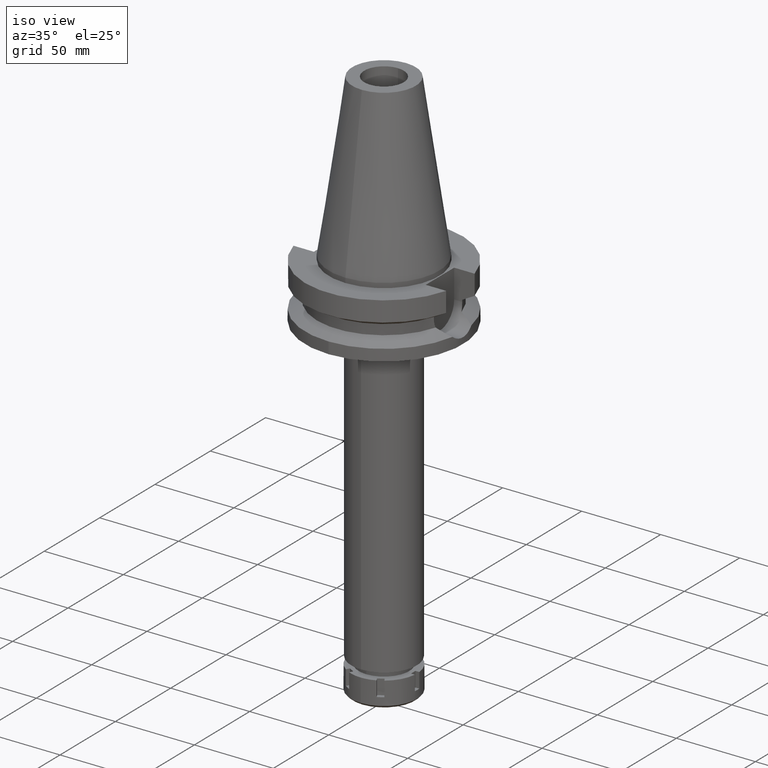
[diagram: clean part render]
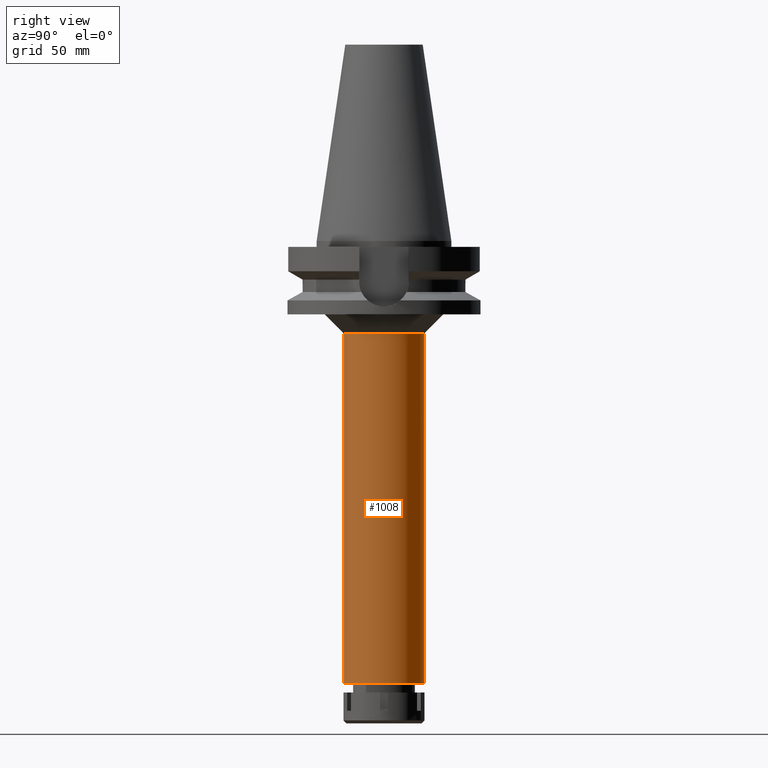
[diagram: tour spotlight — one face highlighted and labeled with its STEP entity id]
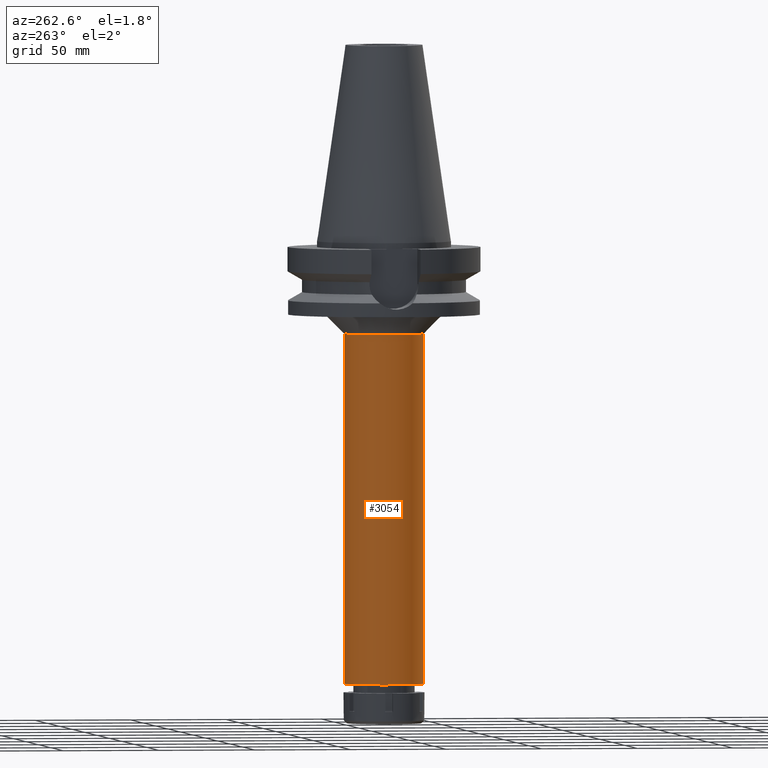
[diagram: tour spotlight — one face highlighted and labeled with its STEP entity id]
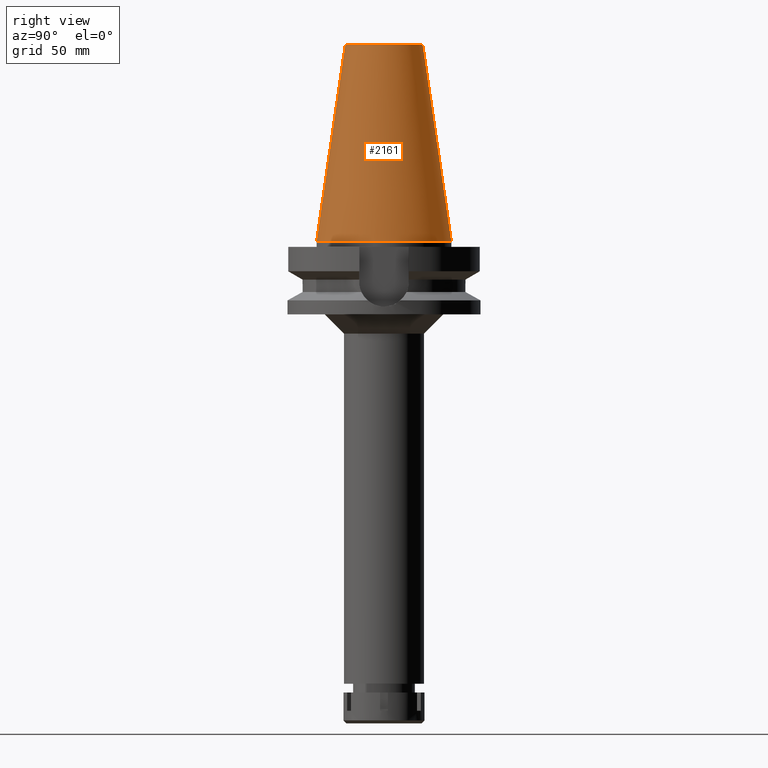
[diagram: tour spotlight — one face highlighted and labeled with its STEP entity id]
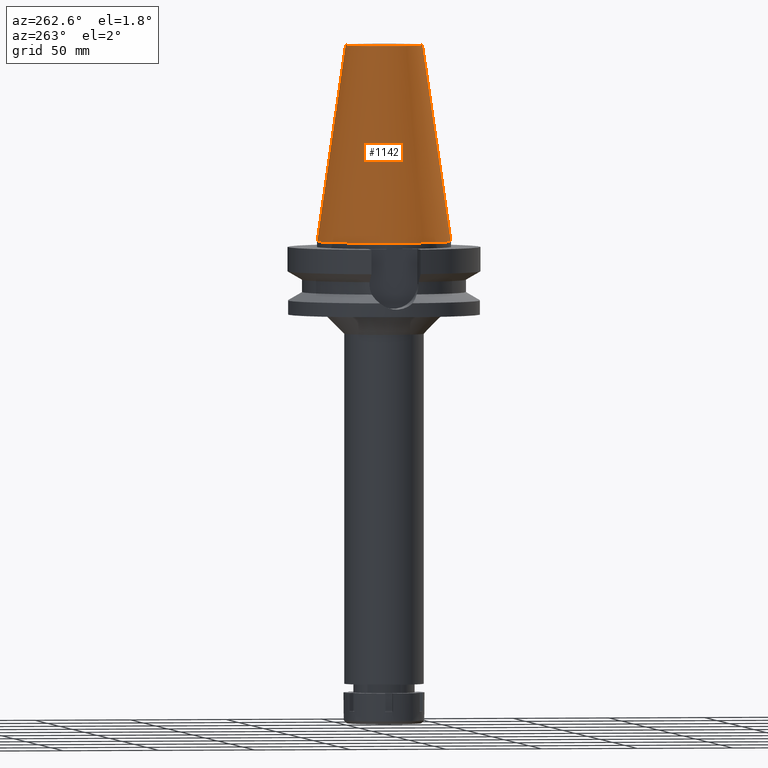
[diagram: tour spotlight — one face highlighted and labeled with its STEP entity id]
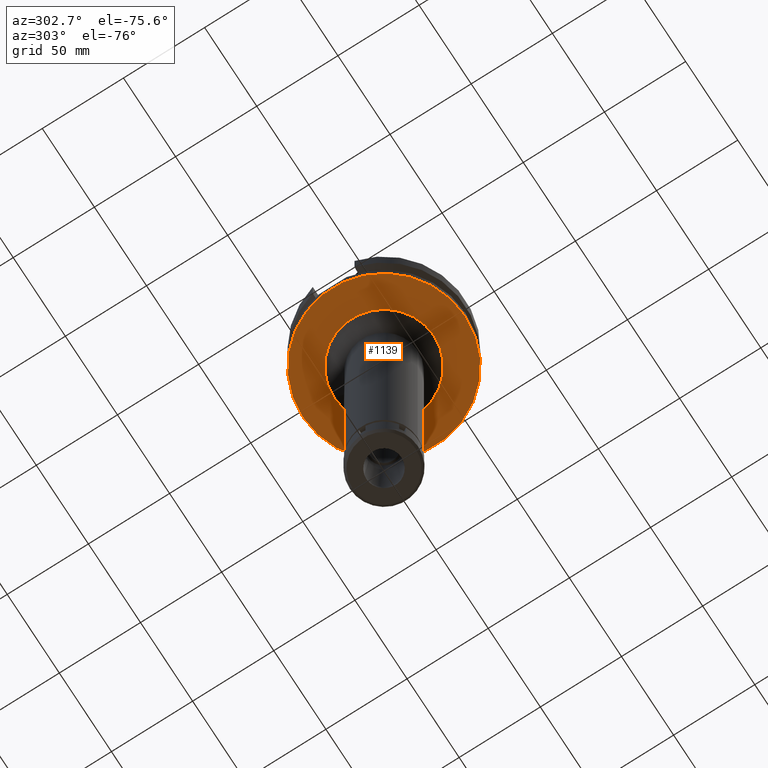
[diagram: tour spotlight — one face highlighted and labeled with its STEP entity id]
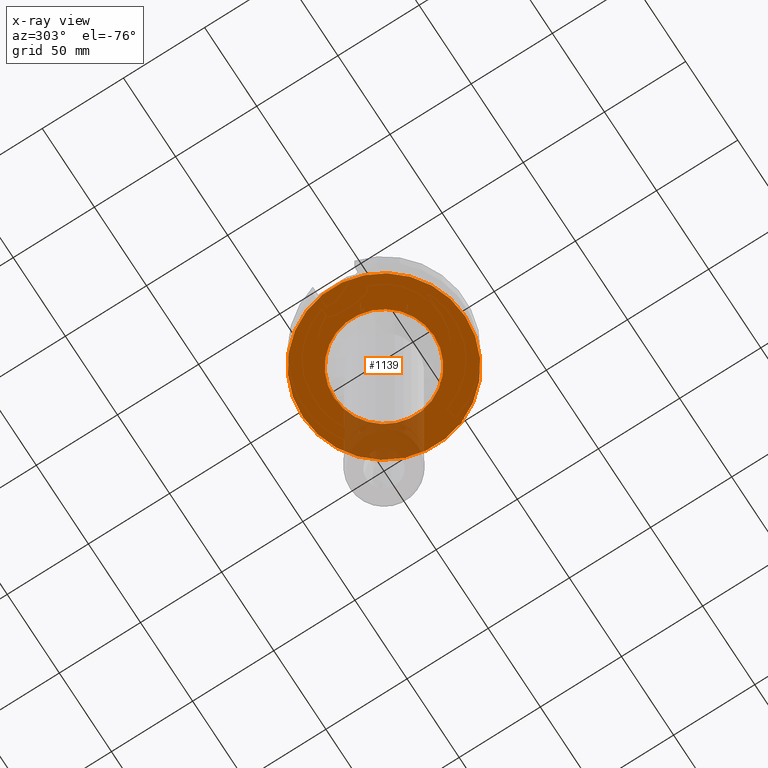
[diagram: x-ray of the same camera — body ghosted, this tour face saturated]
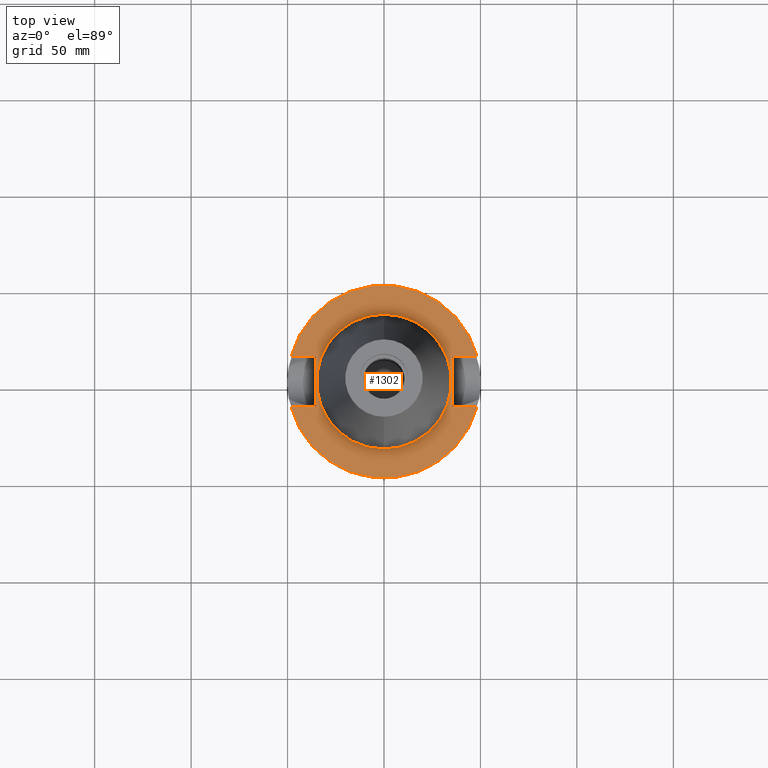
[diagram: tour spotlight — one face highlighted and labeled with its STEP entity id]
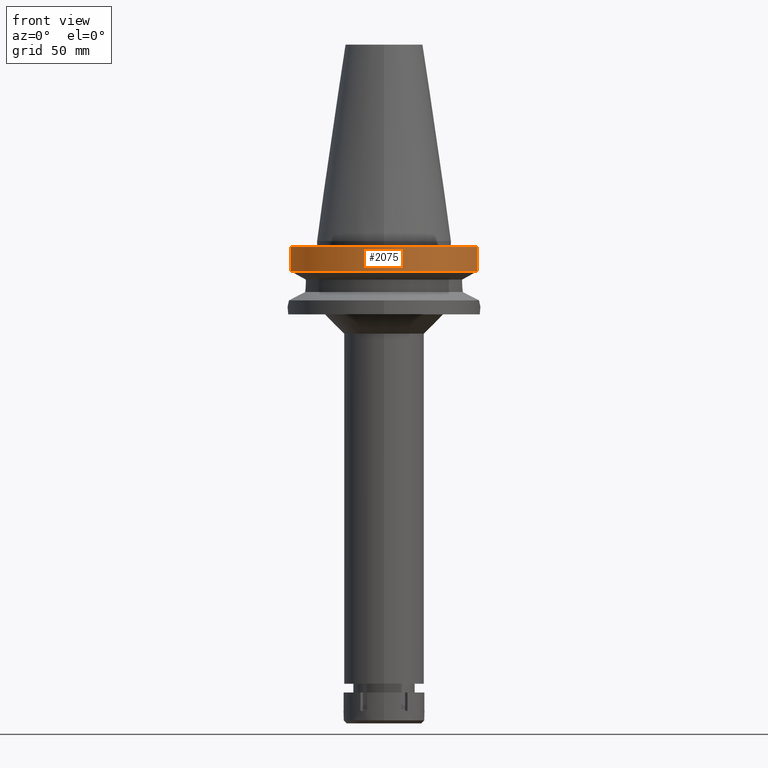
[diagram: tour spotlight — one face highlighted and labeled with its STEP entity id]
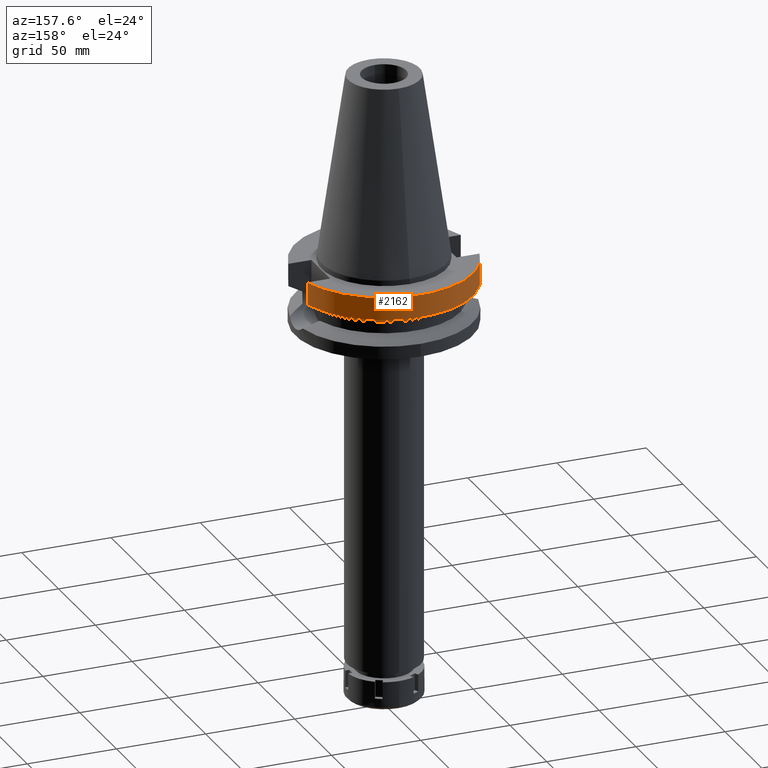
[diagram: tour spotlight — one face highlighted and labeled with its STEP entity id]
A machine part: a face-by-face anatomy tour. The part has 89 B-rep faces; the first image is the clean iso view, then the 8 largest visible faces are spotlighted one at a time (largest first), each with its STEP entity span.

Face 1 — right view, entity #1008. In plain terms, the highlighted cylindrical surface (partial cylindrical patch) has radius 20.75 mm, axis along (0, 0, -1).
Definition (entity closure, byte-faithful):
#76 = CARTESIAN_POINT ( 'NONE',  ( 0.0000000000000000000, 2.681854025452999794E-14, 118.9899999999999949 ) ) ;
#260 = VERTEX_POINT ( 'NONE', #1710 ) ;
#268 = EDGE_CURVE ( 'NONE', #260, #523, #3407, .T. ) ;
#341 = AXIS2_PLACEMENT_3D ( 'NONE', #2353, #685, #3458 ) ;
#523 = VERTEX_POINT ( 'NONE', #3390 ) ;
#626 = CARTESIAN_POINT ( 'NONE',  ( 0.0000000000000000000, 20.75000000000000000, -48.00000000000000000 ) ) ;
#685 = DIRECTION ( 'NONE',  ( 0.0000000000000000000, 0.0000000000000000000, -1.000000000000000000 ) ) ;
#687 = CIRCLE ( 'NONE', #341, 20.75000000000000000 ) ;
#735 = CARTESIAN_POINT ( 'NONE',  ( 0.0000000000000000000, 20.75000000000000000, -48.00000000000000000 ) ) ;
#936 = DIRECTION ( 'NONE',  ( 0.0000000000000000000, -1.000000000000000000, 0.0000000000000000000 ) ) ;
#1008 = ADVANCED_FACE ( 'NONE', ( #2555 ), #1459, .T. ) ;
#1252 = VERTEX_POINT ( 'NONE', #735 ) ;
#1273 = ORIENTED_EDGE ( 'NONE', *, *, #3543, .T. ) ;
#1414 = ORIENTED_EDGE ( 'NONE', *, *, #268, .T. ) ;
#1459 = CYLINDRICAL_SURFACE ( 'NONE', #1950, 20.75000000000000000 ) ;
#1483 = ORIENTED_EDGE ( 'NONE', *, *, #3055, .F. ) ;
#1491 = LINE ( 'NONE', #2117, #2679 ) ;
#1519 = VECTOR ( 'NONE', #2551, 1000.000000000000000 ) ;
#1624 = AXIS2_PLACEMENT_3D ( 'NONE', #1722, #2780, #936 ) ;
#1710 = CARTESIAN_POINT ( 'NONE',  ( 0.0000000000000000000, -20.75000000000000000, -229.5000000000000000 ) ) ;
#1722 = CARTESIAN_POINT ( 'NONE',  ( 0.0000000000000000000, 2.681854025452999794E-14, -229.5000000000000000 ) ) ;
#1745 = LINE ( 'NONE', #626, #1519 ) ;
#1844 = DIRECTION ( 'NONE',  ( 0.0000000000000000000, 0.0000000000000000000, -1.000000000000000000 ) ) ;
#1950 = AXIS2_PLACEMENT_3D ( 'NONE', #76, #2876, #3146 ) ;
#2117 = CARTESIAN_POINT ( 'NONE',  ( 0.0000000000000000000, -20.75000000000000000, -48.00000000000000000 ) ) ;
#2353 = CARTESIAN_POINT ( 'NONE',  ( 0.0000000000000000000, 0.0000000000000000000, -48.00000000000000000 ) ) ;
#2422 = EDGE_CURVE ( 'NONE', #1252, #3325, #687, .T. ) ;
#2551 = DIRECTION ( 'NONE',  ( 0.0000000000000000000, 0.0000000000000000000, -1.000000000000000000 ) ) ;
#2555 = FACE_OUTER_BOUND ( 'NONE', #2710, .T. ) ;
#2679 = VECTOR ( 'NONE', #1844, 1000.000000000000000 ) ;
#2710 = EDGE_LOOP ( 'NONE', ( #3492, #1273, #1414, #1483 ) ) ;
#2780 = DIRECTION ( 'NONE',  ( 0.0000000000000000000, 0.0000000000000000000, 1.000000000000000000 ) ) ;
#2876 = DIRECTION ( 'NONE',  ( 0.0000000000000000000, 0.0000000000000000000, -1.000000000000000000 ) ) ;
#3055 = EDGE_CURVE ( 'NONE', #1252, #523, #1745, .T. ) ;
#3146 = DIRECTION ( 'NONE',  ( 0.0000000000000000000, -1.000000000000000000, 0.0000000000000000000 ) ) ;
#3325 = VERTEX_POINT ( 'NONE', #3557 ) ;
#3390 = CARTESIAN_POINT ( 'NONE',  ( 0.0000000000000000000, 20.75000000000000000, -229.5000000000000000 ) ) ;
#3407 = CIRCLE ( 'NONE', #1624, 20.75000000000000000 ) ;
#3458 = DIRECTION ( 'NONE',  ( 0.0000000000000000000, 1.000000000000000000, 0.0000000000000000000 ) ) ;
#3492 = ORIENTED_EDGE ( 'NONE', *, *, #2422, .T. ) ;
#3543 = EDGE_CURVE ( 'NONE', #3325, #260, #1491, .T. ) ;
#3557 = CARTESIAN_POINT ( 'NONE',  ( 0.0000000000000000000, -20.75000000000000000, -48.00000000000000000 ) ) ;

Face 2 — auxiliary view, entity #3054. In plain terms, the highlighted cylindrical surface (partial cylindrical patch) has radius 20.75 mm, axis along (0, 0, -1).
Definition (entity closure, byte-faithful):
#176 = EDGE_LOOP ( 'NONE', ( #228, #887, #2506, #3128 ) ) ;
#228 = ORIENTED_EDGE ( 'NONE', *, *, #389, .T. ) ;
#260 = VERTEX_POINT ( 'NONE', #1710 ) ;
#389 = EDGE_CURVE ( 'NONE', #523, #260, #1100, .T. ) ;
#490 = DIRECTION ( 'NONE',  ( 0.0000000000000000000, -1.000000000000000000, 0.0000000000000000000 ) ) ;
#523 = VERTEX_POINT ( 'NONE', #3390 ) ;
#607 = DIRECTION ( 'NONE',  ( 0.0000000000000000000, -1.000000000000000000, 0.0000000000000000000 ) ) ;
#626 = CARTESIAN_POINT ( 'NONE',  ( 0.0000000000000000000, 20.75000000000000000, -48.00000000000000000 ) ) ;
#735 = CARTESIAN_POINT ( 'NONE',  ( 0.0000000000000000000, 20.75000000000000000, -48.00000000000000000 ) ) ;
#753 = CARTESIAN_POINT ( 'NONE',  ( 0.0000000000000000000, 0.0000000000000000000, -48.00000000000000000 ) ) ;
#887 = ORIENTED_EDGE ( 'NONE', *, *, #3543, .F. ) ;
#1100 = CIRCLE ( 'NONE', #1221, 20.75000000000000000 ) ;
#1221 = AXIS2_PLACEMENT_3D ( 'NONE', #2066, #3159, #2891 ) ;
#1252 = VERTEX_POINT ( 'NONE', #735 ) ;
#1344 = DIRECTION ( 'NONE',  ( 0.0000000000000000000, 0.0000000000000000000, -1.000000000000000000 ) ) ;
#1491 = LINE ( 'NONE', #2117, #2679 ) ;
#1519 = VECTOR ( 'NONE', #2551, 1000.000000000000000 ) ;
#1710 = CARTESIAN_POINT ( 'NONE',  ( 0.0000000000000000000, -20.75000000000000000, -229.5000000000000000 ) ) ;
#1726 = CARTESIAN_POINT ( 'NONE',  ( 0.0000000000000000000, 2.681854025452999794E-14, 118.9899999999999949 ) ) ;
#1745 = LINE ( 'NONE', #626, #1519 ) ;
#1844 = DIRECTION ( 'NONE',  ( 0.0000000000000000000, 0.0000000000000000000, -1.000000000000000000 ) ) ;
#2066 = CARTESIAN_POINT ( 'NONE',  ( 0.0000000000000000000, 2.681854025452999794E-14, -229.5000000000000000 ) ) ;
#2117 = CARTESIAN_POINT ( 'NONE',  ( 0.0000000000000000000, -20.75000000000000000, -48.00000000000000000 ) ) ;
#2152 = AXIS2_PLACEMENT_3D ( 'NONE', #1726, #2819, #607 ) ;
#2316 = CYLINDRICAL_SURFACE ( 'NONE', #2152, 20.75000000000000000 ) ;
#2482 = CIRCLE ( 'NONE', #2719, 20.75000000000000000 ) ;
#2506 = ORIENTED_EDGE ( 'NONE', *, *, #2691, .T. ) ;
#2551 = DIRECTION ( 'NONE',  ( 0.0000000000000000000, 0.0000000000000000000, -1.000000000000000000 ) ) ;
#2623 = FACE_OUTER_BOUND ( 'NONE', #176, .T. ) ;
#2679 = VECTOR ( 'NONE', #1844, 1000.000000000000000 ) ;
#2691 = EDGE_CURVE ( 'NONE', #3325, #1252, #2482, .T. ) ;
#2719 = AXIS2_PLACEMENT_3D ( 'NONE', #753, #1344, #490 ) ;
#2819 = DIRECTION ( 'NONE',  ( 0.0000000000000000000, 0.0000000000000000000, -1.000000000000000000 ) ) ;
#2891 = DIRECTION ( 'NONE',  ( 0.0000000000000000000, 1.000000000000000000, 0.0000000000000000000 ) ) ;
#3054 = ADVANCED_FACE ( 'NONE', ( #2623 ), #2316, .T. ) ;
#3055 = EDGE_CURVE ( 'NONE', #1252, #523, #1745, .T. ) ;
#3128 = ORIENTED_EDGE ( 'NONE', *, *, #3055, .T. ) ;
#3159 = DIRECTION ( 'NONE',  ( 0.0000000000000000000, 0.0000000000000000000, 1.000000000000000000 ) ) ;
#3325 = VERTEX_POINT ( 'NONE', #3557 ) ;
#3390 = CARTESIAN_POINT ( 'NONE',  ( 0.0000000000000000000, 20.75000000000000000, -229.5000000000000000 ) ) ;
#3543 = EDGE_CURVE ( 'NONE', #3325, #260, #1491, .T. ) ;
#3557 = CARTESIAN_POINT ( 'NONE',  ( 0.0000000000000000000, -20.75000000000000000, -48.00000000000000000 ) ) ;

Face 3 — right view, entity #2161. In plain terms, the highlighted conical surface has half-angle 8.297 deg.
Definition (entity closure, byte-faithful):
#24 = DIRECTION ( 'NONE',  ( 0.0000000000000000000, 1.000000000000000000, 0.0000000000000000000 ) ) ;
#42 = CARTESIAN_POINT ( 'NONE',  ( 0.0000000000000000000, -20.07942971896000017, 101.7999999999999972 ) ) ;
#58 = VERTEX_POINT ( 'NONE', #3335 ) ;
#90 = AXIS2_PLACEMENT_3D ( 'NONE', #1406, #872, #24 ) ;
#376 = CARTESIAN_POINT ( 'NONE',  ( 0.0000000000000000000, 1.847992019912999597E-14, 101.7999999999999972 ) ) ;
#527 = FACE_OUTER_BOUND ( 'NONE', #3572, .T. ) ;
#578 = EDGE_CURVE ( 'NONE', #2630, #597, #1208, .T. ) ;
#597 = VERTEX_POINT ( 'NONE', #2287 ) ;
#744 = ORIENTED_EDGE ( 'NONE', *, *, #578, .F. ) ;
#761 = LINE ( 'NONE', #42, #2644 ) ;
#819 = ORIENTED_EDGE ( 'NONE', *, *, #1782, .F. ) ;
#872 = DIRECTION ( 'NONE',  ( 0.0000000000000000000, 0.0000000000000000000, -1.000000000000000000 ) ) ;
#915 = EDGE_CURVE ( 'NONE', #58, #2194, #761, .T. ) ;
#939 = ORIENTED_EDGE ( 'NONE', *, *, #915, .T. ) ;
#995 = AXIS2_PLACEMENT_3D ( 'NONE', #376, #2926, #2571 ) ;
#1208 = LINE ( 'NONE', #2063, #1261 ) ;
#1261 = VECTOR ( 'NONE', #2883, 1000.000000000000114 ) ;
#1327 = CIRCLE ( 'NONE', #90, 34.92499999999999716 ) ;
#1406 = CARTESIAN_POINT ( 'NONE',  ( 0.0000000000000000000, 1.847992019912999597E-14, 3.979039320256999774E-13 ) ) ;
#1425 = DIRECTION ( 'NONE',  ( 0.0000000000000000000, -0.1443043893538948075, -0.9895333461855641000 ) ) ;
#1782 = EDGE_CURVE ( 'NONE', #597, #2194, #1327, .T. ) ;
#1793 = CONICAL_SURFACE ( 'NONE', #2765, 27.50221485948000222, 0.1448099680379422438 ) ;
#2063 = CARTESIAN_POINT ( 'NONE',  ( 0.0000000000000000000, 20.07942971896000017, 101.7999999999999972 ) ) ;
#2108 = CARTESIAN_POINT ( 'NONE',  ( 0.0000000000000000000, 20.07942971896000017, 101.7999999999999972 ) ) ;
#2111 = DIRECTION ( 'NONE',  ( 0.0000000000000000000, -1.000000000000000000, 0.0000000000000000000 ) ) ;
#2161 = ADVANCED_FACE ( 'NONE', ( #527 ), #1793, .T. ) ;
#2194 = VERTEX_POINT ( 'NONE', #2381 ) ;
#2287 = CARTESIAN_POINT ( 'NONE',  ( 0.0000000000000000000, 34.92499999999999716, 5.400124791776999712E-13 ) ) ;
#2340 = ORIENTED_EDGE ( 'NONE', *, *, #3526, .T. ) ;
#2381 = CARTESIAN_POINT ( 'NONE',  ( 0.0000000000000000000, -34.92499999999999716, 3.979039320256999774E-13 ) ) ;
#2387 = CIRCLE ( 'NONE', #995, 20.07942971896000017 ) ;
#2571 = DIRECTION ( 'NONE',  ( 0.0000000000000000000, 1.000000000000000000, 0.0000000000000000000 ) ) ;
#2630 = VERTEX_POINT ( 'NONE', #2108 ) ;
#2644 = VECTOR ( 'NONE', #1425, 1000.000000000000114 ) ;
#2765 = AXIS2_PLACEMENT_3D ( 'NONE', #3209, #2938, #2111 ) ;
#2883 = DIRECTION ( 'NONE',  ( 0.0000000000000000000, 0.1443043893538948075, -0.9895333461855641000 ) ) ;
#2926 = DIRECTION ( 'NONE',  ( 0.0000000000000000000, 0.0000000000000000000, -1.000000000000000000 ) ) ;
#2938 = DIRECTION ( 'NONE',  ( 0.0000000000000000000, 0.0000000000000000000, -1.000000000000000000 ) ) ;
#3209 = CARTESIAN_POINT ( 'NONE',  ( 0.0000000000000000000, 1.847992019912999597E-14, 50.89999999999999858 ) ) ;
#3335 = CARTESIAN_POINT ( 'NONE',  ( 0.0000000000000000000, -20.07942971896000017, 101.7999999999999972 ) ) ;
#3526 = EDGE_CURVE ( 'NONE', #2630, #58, #2387, .T. ) ;
#3572 = EDGE_LOOP ( 'NONE', ( #2340, #939, #819, #744 ) ) ;

Face 4 — auxiliary view, entity #1142. In plain terms, the highlighted conical surface has half-angle 8.297 deg.
Definition (entity closure, byte-faithful):
#42 = CARTESIAN_POINT ( 'NONE',  ( 0.0000000000000000000, -20.07942971896000017, 101.7999999999999972 ) ) ;
#58 = VERTEX_POINT ( 'NONE', #3335 ) ;
#578 = EDGE_CURVE ( 'NONE', #2630, #597, #1208, .T. ) ;
#597 = VERTEX_POINT ( 'NONE', #2287 ) ;
#654 = EDGE_CURVE ( 'NONE', #2194, #597, #3162, .T. ) ;
#661 = DIRECTION ( 'NONE',  ( 0.0000000000000000000, 0.0000000000000000000, -1.000000000000000000 ) ) ;
#761 = LINE ( 'NONE', #42, #2644 ) ;
#888 = DIRECTION ( 'NONE',  ( 0.0000000000000000000, -1.000000000000000000, 0.0000000000000000000 ) ) ;
#915 = EDGE_CURVE ( 'NONE', #58, #2194, #761, .T. ) ;
#945 = CARTESIAN_POINT ( 'NONE',  ( 0.0000000000000000000, 1.847992019912999597E-14, 50.89999999999999858 ) ) ;
#971 = AXIS2_PLACEMENT_3D ( 'NONE', #945, #1164, #888 ) ;
#985 = CARTESIAN_POINT ( 'NONE',  ( 0.0000000000000000000, 1.847992019912999597E-14, 3.979039320256999774E-13 ) ) ;
#1030 = CONICAL_SURFACE ( 'NONE', #971, 27.50221485948000222, 0.1448099680379422438 ) ;
#1142 = ADVANCED_FACE ( 'NONE', ( #3402 ), #1030, .T. ) ;
#1164 = DIRECTION ( 'NONE',  ( 0.0000000000000000000, 0.0000000000000000000, -1.000000000000000000 ) ) ;
#1208 = LINE ( 'NONE', #2063, #1261 ) ;
#1261 = VECTOR ( 'NONE', #2883, 1000.000000000000114 ) ;
#1264 = CARTESIAN_POINT ( 'NONE',  ( 0.0000000000000000000, 1.847992019912999597E-14, 101.7999999999999972 ) ) ;
#1417 = EDGE_CURVE ( 'NONE', #58, #2630, #1733, .T. ) ;
#1425 = DIRECTION ( 'NONE',  ( 0.0000000000000000000, -0.1443043893538948075, -0.9895333461855641000 ) ) ;
#1437 = AXIS2_PLACEMENT_3D ( 'NONE', #985, #2096, #3191 ) ;
#1605 = ORIENTED_EDGE ( 'NONE', *, *, #654, .F. ) ;
#1733 = CIRCLE ( 'NONE', #1901, 20.07942971896000017 ) ;
#1901 = AXIS2_PLACEMENT_3D ( 'NONE', #1264, #661, #2046 ) ;
#1970 = ORIENTED_EDGE ( 'NONE', *, *, #578, .T. ) ;
#2046 = DIRECTION ( 'NONE',  ( 0.0000000000000000000, -1.000000000000000000, 0.0000000000000000000 ) ) ;
#2063 = CARTESIAN_POINT ( 'NONE',  ( 0.0000000000000000000, 20.07942971896000017, 101.7999999999999972 ) ) ;
#2096 = DIRECTION ( 'NONE',  ( 0.0000000000000000000, 0.0000000000000000000, -1.000000000000000000 ) ) ;
#2108 = CARTESIAN_POINT ( 'NONE',  ( 0.0000000000000000000, 20.07942971896000017, 101.7999999999999972 ) ) ;
#2194 = VERTEX_POINT ( 'NONE', #2381 ) ;
#2287 = CARTESIAN_POINT ( 'NONE',  ( 0.0000000000000000000, 34.92499999999999716, 5.400124791776999712E-13 ) ) ;
#2381 = CARTESIAN_POINT ( 'NONE',  ( 0.0000000000000000000, -34.92499999999999716, 3.979039320256999774E-13 ) ) ;
#2630 = VERTEX_POINT ( 'NONE', #2108 ) ;
#2644 = VECTOR ( 'NONE', #1425, 1000.000000000000114 ) ;
#2883 = DIRECTION ( 'NONE',  ( 0.0000000000000000000, 0.1443043893538948075, -0.9895333461855641000 ) ) ;
#3027 = ORIENTED_EDGE ( 'NONE', *, *, #915, .F. ) ;
#3162 = CIRCLE ( 'NONE', #1437, 34.92499999999999716 ) ;
#3191 = DIRECTION ( 'NONE',  ( 0.0000000000000000000, -1.000000000000000000, 0.0000000000000000000 ) ) ;
#3288 = EDGE_LOOP ( 'NONE', ( #1605, #3027, #3386, #1970 ) ) ;
#3335 = CARTESIAN_POINT ( 'NONE',  ( 0.0000000000000000000, -20.07942971896000017, 101.7999999999999972 ) ) ;
#3386 = ORIENTED_EDGE ( 'NONE', *, *, #1417, .T. ) ;
#3402 = FACE_OUTER_BOUND ( 'NONE', #3288, .T. ) ;

Face 5 — auxiliary view, entity #1139. An x-ray twin of the same camera follows (body ghosted, this face saturated) — the face is partly hidden behind the body. In plain terms, the highlighted planar face has unit normal (0, 0, -1).
Definition (entity closure, byte-faithful):
#91 = DIRECTION ( 'NONE',  ( 0.0000000000000000000, 0.0000000000000000000, 1.000000000000000000 ) ) ;
#95 = FACE_BOUND ( 'NONE', #2972, .T. ) ;
#224 = ORIENTED_EDGE ( 'NONE', *, *, #2930, .F. ) ;
#343 = VERTEX_POINT ( 'NONE', #2332 ) ;
#365 = EDGE_CURVE ( 'NONE', #1680, #2084, #741, .T. ) ;
#390 = CIRCLE ( 'NONE', #2813, 30.75000000000000000 ) ;
#589 = CARTESIAN_POINT ( 'NONE',  ( 0.0000000000000000000, 2.681854025452999794E-14, -38.00000000000000000 ) ) ;
#741 = CIRCLE ( 'NONE', #2830, 30.75000000000000000 ) ;
#743 = CARTESIAN_POINT ( 'NONE',  ( 0.0000000000000000000, 30.75000000000000000, -38.00000000000000000 ) ) ;
#809 = AXIS2_PLACEMENT_3D ( 'NONE', #589, #861, #837 ) ;
#837 = DIRECTION ( 'NONE',  ( 0.0000000000000000000, 1.000000000000000000, 0.0000000000000000000 ) ) ;
#858 = ORIENTED_EDGE ( 'NONE', *, *, #365, .F. ) ;
#861 = DIRECTION ( 'NONE',  ( 0.0000000000000000000, 0.0000000000000000000, 1.000000000000000000 ) ) ;
#904 = EDGE_LOOP ( 'NONE', ( #1664, #224 ) ) ;
#929 = CARTESIAN_POINT ( 'NONE',  ( 0.0000000000000000000, -30.75000000000000000, -38.00000000000000000 ) ) ;
#941 = CARTESIAN_POINT ( 'NONE',  ( 0.0000000000000000000, 2.681854025452999794E-14, -38.00000000000000000 ) ) ;
#962 = EDGE_CURVE ( 'NONE', #2084, #1680, #390, .T. ) ;
#976 = CARTESIAN_POINT ( 'NONE',  ( 0.0000000000000000000, 0.0000000000000000000, -38.00000000000000000 ) ) ;
#1139 = ADVANCED_FACE ( 'NONE', ( #1532, #95 ), #2318, .T. ) ;
#1300 = DIRECTION ( 'NONE',  ( 0.0000000000000000000, 0.0000000000000000000, -1.000000000000000000 ) ) ;
#1509 = DIRECTION ( 'NONE',  ( 0.0000000000000000000, 0.0000000000000000000, -1.000000000000000000 ) ) ;
#1532 = FACE_OUTER_BOUND ( 'NONE', #904, .T. ) ;
#1542 = DIRECTION ( 'NONE',  ( 0.0000000000000000000, 1.000000000000000000, 0.0000000000000000000 ) ) ;
#1664 = ORIENTED_EDGE ( 'NONE', *, *, #2996, .F. ) ;
#1680 = VERTEX_POINT ( 'NONE', #743 ) ;
#1775 = DIRECTION ( 'NONE',  ( 0.0000000000000000000, -1.000000000000000000, 0.0000000000000000000 ) ) ;
#1973 = CIRCLE ( 'NONE', #809, 50.00000000000000000 ) ;
#2084 = VERTEX_POINT ( 'NONE', #929 ) ;
#2264 = DIRECTION ( 'NONE',  ( 0.0000000000000000000, -1.000000000000000000, 0.0000000000000000000 ) ) ;
#2297 = CARTESIAN_POINT ( 'NONE',  ( 0.0000000000000000000, 0.0000000000000000000, -38.00000000000000000 ) ) ;
#2318 = PLANE ( 'NONE',  #2533 ) ;
#2332 = CARTESIAN_POINT ( 'NONE',  ( 0.0000000000000000000, -50.00000000000000000, -38.00000000000000000 ) ) ;
#2373 = DIRECTION ( 'NONE',  ( 0.0000000000000000000, -1.000000000000000000, 0.0000000000000000000 ) ) ;
#2447 = CARTESIAN_POINT ( 'NONE',  ( 0.0000000000000000000, 50.00000000000000000, -38.00000000000000000 ) ) ;
#2533 = AXIS2_PLACEMENT_3D ( 'NONE', #2297, #1509, #2264 ) ;
#2605 = ORIENTED_EDGE ( 'NONE', *, *, #962, .F. ) ;
#2628 = VERTEX_POINT ( 'NONE', #2447 ) ;
#2813 = AXIS2_PLACEMENT_3D ( 'NONE', #976, #3493, #2373 ) ;
#2830 = AXIS2_PLACEMENT_3D ( 'NONE', #3213, #1300, #1542 ) ;
#2930 = EDGE_CURVE ( 'NONE', #2628, #343, #1973, .T. ) ;
#2972 = EDGE_LOOP ( 'NONE', ( #2605, #858 ) ) ;
#2996 = EDGE_CURVE ( 'NONE', #343, #2628, #3250, .T. ) ;
#3213 = CARTESIAN_POINT ( 'NONE',  ( 0.0000000000000000000, 0.0000000000000000000, -38.00000000000000000 ) ) ;
#3250 = CIRCLE ( 'NONE', #3533, 50.00000000000000000 ) ;
#3493 = DIRECTION ( 'NONE',  ( 0.0000000000000000000, 0.0000000000000000000, -1.000000000000000000 ) ) ;
#3533 = AXIS2_PLACEMENT_3D ( 'NONE', #941, #91, #1775 ) ;

Face 6 — top view, entity #1302. In plain terms, the highlighted planar face has unit normal (0, 0, -1).
Definition (entity closure, byte-faithful):
#29 = DIRECTION ( 'NONE',  ( 0.0000000000000000000, -1.000000000000000000, 0.0000000000000000000 ) ) ;
#80 = DIRECTION ( 'NONE',  ( 0.0000000000000000000, -1.000000000000000000, 0.0000000000000000000 ) ) ;
#83 = CARTESIAN_POINT ( 'NONE',  ( 0.0000000000000000000, 2.681854025452999794E-14, -3.000000000000000000 ) ) ;
#86 = CIRCLE ( 'NONE', #1893, 50.00000000000000000 ) ;
#107 = CARTESIAN_POINT ( 'NONE',  ( 35.39999999999999858, 12.84999999999999964, -3.000000000000000000 ) ) ;
#119 = EDGE_LOOP ( 'NONE', ( #159, #1424 ) ) ;
#123 = DIRECTION ( 'NONE',  ( 0.0000000000000000000, -1.000000000000000000, 0.0000000000000000000 ) ) ;
#159 = ORIENTED_EDGE ( 'NONE', *, *, #2007, .F. ) ;
#216 = ORIENTED_EDGE ( 'NONE', *, *, #1983, .F. ) ;
#221 = ORIENTED_EDGE ( 'NONE', *, *, #2315, .T. ) ;
#222 = VECTOR ( 'NONE', #2787, 1000.000000000000000 ) ;
#246 = ORIENTED_EDGE ( 'NONE', *, *, #2514, .F. ) ;
#269 = LINE ( 'NONE', #1107, #222 ) ;
#318 = ORIENTED_EDGE ( 'NONE', *, *, #538, .F. ) ;
#368 = DIRECTION ( 'NONE',  ( 0.0000000000000000000, 0.0000000000000000000, 1.000000000000000000 ) ) ;
#373 = CARTESIAN_POINT ( 'NONE',  ( 0.0000000000000000000, -34.92499999999999716, -3.000000000000000000 ) ) ;
#387 = CARTESIAN_POINT ( 'NONE',  ( 35.39999999999999858, -12.84999999999999964, -3.000000000000000000 ) ) ;
#538 = EDGE_CURVE ( 'NONE', #1315, #768, #86, .T. ) ;
#570 = ORIENTED_EDGE ( 'NONE', *, *, #983, .F. ) ;
#577 = EDGE_CURVE ( 'NONE', #1715, #1315, #1229, .T. ) ;
#604 = DIRECTION ( 'NONE',  ( 1.000000000000000000, 0.0000000000000000000, 0.0000000000000000000 ) ) ;
#622 = AXIS2_PLACEMENT_3D ( 'NONE', #2285, #368, #80 ) ;
#633 = DIRECTION ( 'NONE',  ( 0.0000000000000000000, 1.000000000000000000, 0.0000000000000000000 ) ) ;
#660 = EDGE_CURVE ( 'NONE', #1442, #1715, #2363, .T. ) ;
#768 = VERTEX_POINT ( 'NONE', #2994 ) ;
#869 = DIRECTION ( 'NONE',  ( 0.0000000000000000000, -1.000000000000000000, 0.0000000000000000000 ) ) ;
#950 = DIRECTION ( 'NONE',  ( 0.0000000000000000000, 0.0000000000000000000, 1.000000000000000000 ) ) ;
#983 = EDGE_CURVE ( 'NONE', #3555, #2299, #1200, .T. ) ;
#991 = VERTEX_POINT ( 'NONE', #3165 ) ;
#1107 = CARTESIAN_POINT ( 'NONE',  ( -35.39999999999999858, -12.84999999999999964, -3.000000000000000000 ) ) ;
#1119 = CARTESIAN_POINT ( 'NONE',  ( 0.0000000000000000000, 1.187907395172999884E-14, -3.000000000000000000 ) ) ;
#1200 = LINE ( 'NONE', #1720, #2013 ) ;
#1229 = LINE ( 'NONE', #387, #1837 ) ;
#1302 = ADVANCED_FACE ( 'NONE', ( #2276, #3587 ), #1450, .F. ) ;
#1311 = EDGE_CURVE ( 'NONE', #1442, #991, #3379, .T. ) ;
#1315 = VERTEX_POINT ( 'NONE', #3320 ) ;
#1416 = VERTEX_POINT ( 'NONE', #373 ) ;
#1424 = ORIENTED_EDGE ( 'NONE', *, *, #2031, .F. ) ;
#1442 = VERTEX_POINT ( 'NONE', #107 ) ;
#1450 = PLANE ( 'NONE',  #2187 ) ;
#1500 = DIRECTION ( 'NONE',  ( 1.000000000000000000, 0.0000000000000000000, 0.0000000000000000000 ) ) ;
#1536 = CARTESIAN_POINT ( 'NONE',  ( 0.0000000000000000000, 2.681854025452999794E-14, -3.000000000000000000 ) ) ;
#1715 = VERTEX_POINT ( 'NONE', #3537 ) ;
#1720 = CARTESIAN_POINT ( 'NONE',  ( -35.39999999999999858, 12.84999999999999964, -3.000000000000000000 ) ) ;
#1749 = DIRECTION ( 'NONE',  ( 0.0000000000000000000, 1.000000000000000000, 0.0000000000000000000 ) ) ;
#1769 = CARTESIAN_POINT ( 'NONE',  ( 0.0000000000000000000, 2.681854025452999794E-14, -3.000000000000000000 ) ) ;
#1837 = VECTOR ( 'NONE', #1500, 1000.000000000000000 ) ;
#1845 = CIRCLE ( 'NONE', #3048, 34.92499999999999716 ) ;
#1893 = AXIS2_PLACEMENT_3D ( 'NONE', #83, #3429, #123 ) ;
#1983 = EDGE_CURVE ( 'NONE', #2299, #991, #2137, .T. ) ;
#2005 = CARTESIAN_POINT ( 'NONE',  ( 35.39999999999999858, 12.84999999999999964, -3.000000000000000000 ) ) ;
#2007 = EDGE_CURVE ( 'NONE', #1416, #3439, #2302, .T. ) ;
#2013 = VECTOR ( 'NONE', #2849, 1000.000000000000000 ) ;
#2031 = EDGE_CURVE ( 'NONE', #3439, #1416, #1845, .T. ) ;
#2036 = CARTESIAN_POINT ( 'NONE',  ( -35.39999999999999858, -12.84999999999999964, -3.000000000000000000 ) ) ;
#2081 = VECTOR ( 'NONE', #604, 1000.000000000000000 ) ;
#2137 = CIRCLE ( 'NONE', #2423, 50.00000000000000000 ) ;
#2187 = AXIS2_PLACEMENT_3D ( 'NONE', #1119, #3394, #29 ) ;
#2215 = CARTESIAN_POINT ( 'NONE',  ( -48.32057015392000210, 12.84999999999999964, -3.000000000000000000 ) ) ;
#2276 = FACE_OUTER_BOUND ( 'NONE', #3297, .T. ) ;
#2285 = CARTESIAN_POINT ( 'NONE',  ( 0.0000000000000000000, 2.681854025452999794E-14, -3.000000000000000000 ) ) ;
#2299 = VERTEX_POINT ( 'NONE', #2215 ) ;
#2302 = CIRCLE ( 'NONE', #622, 34.92499999999999716 ) ;
#2315 = EDGE_CURVE ( 'NONE', #2647, #768, #269, .T. ) ;
#2317 = ORIENTED_EDGE ( 'NONE', *, *, #660, .F. ) ;
#2363 = LINE ( 'NONE', #3425, #3334 ) ;
#2410 = CARTESIAN_POINT ( 'NONE',  ( -35.39999999999999858, -12.84999999999999964, -3.000000000000000000 ) ) ;
#2423 = AXIS2_PLACEMENT_3D ( 'NONE', #1536, #3171, #633 ) ;
#2514 = EDGE_CURVE ( 'NONE', #2647, #3555, #2610, .T. ) ;
#2610 = LINE ( 'NONE', #2036, #2768 ) ;
#2647 = VERTEX_POINT ( 'NONE', #2410 ) ;
#2768 = VECTOR ( 'NONE', #1749, 1000.000000000000000 ) ;
#2769 = CARTESIAN_POINT ( 'NONE',  ( 0.0000000000000000000, 34.92499999999999716, -3.000000000000000000 ) ) ;
#2787 = DIRECTION ( 'NONE',  ( -1.000000000000000000, 0.0000000000000000000, 0.0000000000000000000 ) ) ;
#2849 = DIRECTION ( 'NONE',  ( -1.000000000000000000, 0.0000000000000000000, 0.0000000000000000000 ) ) ;
#2850 = DIRECTION ( 'NONE',  ( 0.0000000000000000000, 1.000000000000000000, 0.0000000000000000000 ) ) ;
#2994 = CARTESIAN_POINT ( 'NONE',  ( -48.32057015392000210, -12.84999999999999964, -3.000000000000000000 ) ) ;
#3007 = ORIENTED_EDGE ( 'NONE', *, *, #1311, .T. ) ;
#3048 = AXIS2_PLACEMENT_3D ( 'NONE', #1769, #950, #2850 ) ;
#3165 = CARTESIAN_POINT ( 'NONE',  ( 48.32057015392000210, 12.84999999999999964, -3.000000000000000000 ) ) ;
#3171 = DIRECTION ( 'NONE',  ( 0.0000000000000000000, 0.0000000000000000000, -1.000000000000000000 ) ) ;
#3297 = EDGE_LOOP ( 'NONE', ( #221, #318, #3349, #2317, #3007, #216, #570, #246 ) ) ;
#3320 = CARTESIAN_POINT ( 'NONE',  ( 48.32057015392000210, -12.84999999999999964, -3.000000000000000000 ) ) ;
#3334 = VECTOR ( 'NONE', #869, 1000.000000000000000 ) ;
#3349 = ORIENTED_EDGE ( 'NONE', *, *, #577, .F. ) ;
#3379 = LINE ( 'NONE', #2005, #2081 ) ;
#3394 = DIRECTION ( 'NONE',  ( 0.0000000000000000000, 0.0000000000000000000, -1.000000000000000000 ) ) ;
#3425 = CARTESIAN_POINT ( 'NONE',  ( 35.39999999999999858, 12.84999999999999964, -3.000000000000000000 ) ) ;
#3429 = DIRECTION ( 'NONE',  ( 0.0000000000000000000, 0.0000000000000000000, -1.000000000000000000 ) ) ;
#3439 = VERTEX_POINT ( 'NONE', #2769 ) ;
#3489 = CARTESIAN_POINT ( 'NONE',  ( -35.39999999999999858, 12.84999999999999964, -3.000000000000000000 ) ) ;
#3537 = CARTESIAN_POINT ( 'NONE',  ( 35.39999999999999858, -12.84999999999999964, -3.000000000000000000 ) ) ;
#3555 = VERTEX_POINT ( 'NONE', #3489 ) ;
#3587 = FACE_BOUND ( 'NONE', #119, .T. ) ;

Face 7 — front view, entity #2075. In plain terms, the highlighted cylindrical surface (partial cylindrical patch) has radius 50 mm, axis along (0, 0, -1).
Definition (entity closure, byte-faithful):
#83 = CARTESIAN_POINT ( 'NONE',  ( 0.0000000000000000000, 2.681854025452999794E-14, -3.000000000000000000 ) ) ;
#86 = CIRCLE ( 'NONE', #1893, 50.00000000000000000 ) ;
#123 = DIRECTION ( 'NONE',  ( 0.0000000000000000000, -1.000000000000000000, 0.0000000000000000000 ) ) ;
#218 = AXIS2_PLACEMENT_3D ( 'NONE', #3064, #353, #1740 ) ;
#245 = ORIENTED_EDGE ( 'NONE', *, *, #1357, .T. ) ;
#353 = DIRECTION ( 'NONE',  ( 0.0000000000000000000, 0.0000000000000000000, 1.000000000000000000 ) ) ;
#538 = EDGE_CURVE ( 'NONE', #1315, #768, #86, .T. ) ;
#768 = VERTEX_POINT ( 'NONE', #2994 ) ;
#973 = DIRECTION ( 'NONE',  ( -8.100800697240604101E-08, 3.046187202870850882E-07, 0.9999999999999503730 ) ) ;
#1031 = CIRCLE ( 'NONE', #218, 50.00000000000000000 ) ;
#1056 = EDGE_LOOP ( 'NONE', ( #1376, #245, #2037, #3057 ) ) ;
#1089 = AXIS2_PLACEMENT_3D ( 'NONE', #3136, #3408, #1784 ) ;
#1249 = LINE ( 'NONE', #2349, #1977 ) ;
#1315 = VERTEX_POINT ( 'NONE', #3320 ) ;
#1357 = EDGE_CURVE ( 'NONE', #1461, #1580, #1031, .T. ) ;
#1376 = ORIENTED_EDGE ( 'NONE', *, *, #3263, .F. ) ;
#1461 = VERTEX_POINT ( 'NONE', #3412 ) ;
#1580 = VERTEX_POINT ( 'NONE', #1759 ) ;
#1620 = VECTOR ( 'NONE', #1819, 999.9999999999998863 ) ;
#1740 = DIRECTION ( 'NONE',  ( 0.0000000000000000000, -1.000000000000000000, 0.0000000000000000000 ) ) ;
#1753 = CARTESIAN_POINT ( 'NONE',  ( 48.32057015392000210, -12.84999999999999964, -3.000000000000000000 ) ) ;
#1759 = CARTESIAN_POINT ( 'NONE',  ( 48.32056912779999891, -12.85000385857999916, -15.66265767091000072 ) ) ;
#1784 = DIRECTION ( 'NONE',  ( 0.0000000000000000000, -1.000000000000000000, 0.0000000000000000000 ) ) ;
#1819 = DIRECTION ( 'NONE',  ( -8.103519278860602309E-08, -3.047209459813850567E-07, -0.9999999999999503730 ) ) ;
#1893 = AXIS2_PLACEMENT_3D ( 'NONE', #83, #3429, #123 ) ;
#1934 = EDGE_CURVE ( 'NONE', #1315, #1580, #2594, .T. ) ;
#1977 = VECTOR ( 'NONE', #973, 1000.000000000000114 ) ;
#2037 = ORIENTED_EDGE ( 'NONE', *, *, #1934, .F. ) ;
#2075 = ADVANCED_FACE ( 'NONE', ( #2094 ), #2303, .T. ) ;
#2094 = FACE_OUTER_BOUND ( 'NONE', #1056, .T. ) ;
#2303 = CYLINDRICAL_SURFACE ( 'NONE', #1089, 50.00000000000000000 ) ;
#2349 = CARTESIAN_POINT ( 'NONE',  ( -48.32056912814000071, -12.85000385727999905, -15.66265768250999990 ) ) ;
#2594 = LINE ( 'NONE', #1753, #1620 ) ;
#2994 = CARTESIAN_POINT ( 'NONE',  ( -48.32057015392000210, -12.84999999999999964, -3.000000000000000000 ) ) ;
#3057 = ORIENTED_EDGE ( 'NONE', *, *, #538, .T. ) ;
#3064 = CARTESIAN_POINT ( 'NONE',  ( 0.0000000000000000000, 1.006319759053999930E-14, -15.66269223573000069 ) ) ;
#3136 = CARTESIAN_POINT ( 'NONE',  ( 0.0000000000000000000, 2.681854025452999794E-14, 118.9899999999999949 ) ) ;
#3263 = EDGE_CURVE ( 'NONE', #1461, #768, #1249, .T. ) ;
#3320 = CARTESIAN_POINT ( 'NONE',  ( 48.32057015392000210, -12.84999999999999964, -3.000000000000000000 ) ) ;
#3408 = DIRECTION ( 'NONE',  ( 0.0000000000000000000, 0.0000000000000000000, -1.000000000000000000 ) ) ;
#3412 = CARTESIAN_POINT ( 'NONE',  ( -48.32056912814000071, -12.85000385727999905, -15.66265768250999990 ) ) ;
#3429 = DIRECTION ( 'NONE',  ( 0.0000000000000000000, 0.0000000000000000000, -1.000000000000000000 ) ) ;

Face 8 — auxiliary view, entity #2162. In plain terms, the highlighted cylindrical surface (partial cylindrical patch) has radius 50 mm, axis along (0, 0, -1).
Definition (entity closure, byte-faithful):
#194 = DIRECTION ( 'NONE',  ( 0.9664114030784185516, 0.2570000000000048357, 0.0000000000000000000 ) ) ;
#398 = DIRECTION ( 'NONE',  ( 8.100749521826603165E-08, -3.046167948962851084E-07, 0.9999999999999503730 ) ) ;
#505 = VECTOR ( 'NONE', #398, 1000.000000000000114 ) ;
#633 = DIRECTION ( 'NONE',  ( 0.0000000000000000000, 1.000000000000000000, 0.0000000000000000000 ) ) ;
#731 = ORIENTED_EDGE ( 'NONE', *, *, #1258, .T. ) ;
#792 = FACE_OUTER_BOUND ( 'NONE', #3143, .T. ) ;
#808 = ORIENTED_EDGE ( 'NONE', *, *, #1321, .F. ) ;
#972 = CIRCLE ( 'NONE', #3047, 50.00000000000002842 ) ;
#991 = VERTEX_POINT ( 'NONE', #3165 ) ;
#1018 = DIRECTION ( 'NONE',  ( 0.0000000000000000000, -1.000000000000000000, 0.0000000000000000000 ) ) ;
#1137 = EDGE_CURVE ( 'NONE', #2216, #991, #2572, .T. ) ;
#1195 = CARTESIAN_POINT ( 'NONE',  ( -48.32057015392000210, 12.84999999999999964, -3.000000000000000000 ) ) ;
#1258 = EDGE_CURVE ( 'NONE', #2216, #3313, #972, .T. ) ;
#1321 = EDGE_CURVE ( 'NONE', #2299, #3313, #3099, .T. ) ;
#1422 = ORIENTED_EDGE ( 'NONE', *, *, #1983, .T. ) ;
#1494 = CARTESIAN_POINT ( 'NONE',  ( 48.32056912815000516, 12.85000385725999905, -15.66265768273000170 ) ) ;
#1536 = CARTESIAN_POINT ( 'NONE',  ( 0.0000000000000000000, 2.681854025452999794E-14, -3.000000000000000000 ) ) ;
#1631 = CARTESIAN_POINT ( 'NONE',  ( -48.32056912780999625, 12.85000385852000093, -15.66265767138999898 ) ) ;
#1903 = AXIS2_PLACEMENT_3D ( 'NONE', #3514, #2165, #1018 ) ;
#1983 = EDGE_CURVE ( 'NONE', #2299, #991, #2137, .T. ) ;
#2137 = CIRCLE ( 'NONE', #2423, 50.00000000000000000 ) ;
#2162 = ADVANCED_FACE ( 'NONE', ( #792 ), #3277, .T. ) ;
#2165 = DIRECTION ( 'NONE',  ( 0.0000000000000000000, 0.0000000000000000000, -1.000000000000000000 ) ) ;
#2215 = CARTESIAN_POINT ( 'NONE',  ( -48.32057015392000210, 12.84999999999999964, -3.000000000000000000 ) ) ;
#2216 = VERTEX_POINT ( 'NONE', #3480 ) ;
#2299 = VERTEX_POINT ( 'NONE', #2215 ) ;
#2423 = AXIS2_PLACEMENT_3D ( 'NONE', #1536, #3171, #633 ) ;
#2572 = LINE ( 'NONE', #1494, #505 ) ;
#2684 = DIRECTION ( 'NONE',  ( 0.0000000000000000000, 0.0000000000000000000, 1.000000000000000000 ) ) ;
#2824 = ORIENTED_EDGE ( 'NONE', *, *, #1137, .F. ) ;
#3047 = AXIS2_PLACEMENT_3D ( 'NONE', #3527, #2684, #194 ) ;
#3099 = LINE ( 'NONE', #1195, #3515 ) ;
#3143 = EDGE_LOOP ( 'NONE', ( #808, #1422, #2824, #731 ) ) ;
#3165 = CARTESIAN_POINT ( 'NONE',  ( 48.32057015392000210, 12.84999999999999964, -3.000000000000000000 ) ) ;
#3171 = DIRECTION ( 'NONE',  ( 0.0000000000000000000, 0.0000000000000000000, -1.000000000000000000 ) ) ;
#3277 = CYLINDRICAL_SURFACE ( 'NONE', #1903, 50.00000000000000000 ) ;
#3313 = VERTEX_POINT ( 'NONE', #1631 ) ;
#3338 = DIRECTION ( 'NONE',  ( 8.103406434828602822E-08, 3.047167049311851409E-07, -0.9999999999999503730 ) ) ;
#3480 = CARTESIAN_POINT ( 'NONE',  ( 48.32056912815000516, 12.85000385725999905, -15.66265768273000170 ) ) ;
#3514 = CARTESIAN_POINT ( 'NONE',  ( 0.0000000000000000000, 2.681854025452999794E-14, 118.9899999999999949 ) ) ;
#3515 = VECTOR ( 'NONE', #3338, 1000.000000000000114 ) ;
#3527 = CARTESIAN_POINT ( 'NONE',  ( 0.0000000000000000000, 1.006319759053999930E-14, -15.66269223573000069 ) ) ;